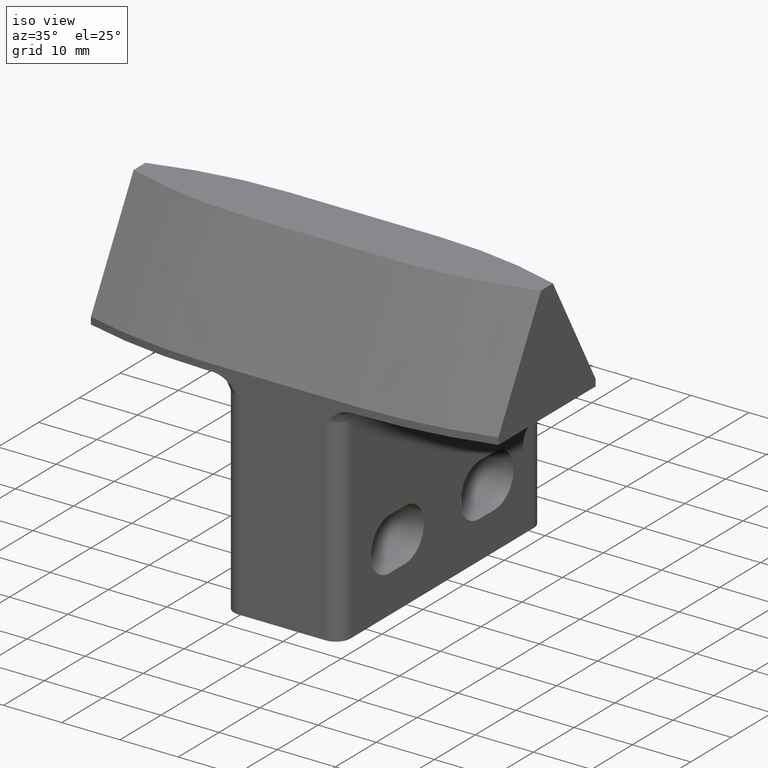
[diagram: clean part render]
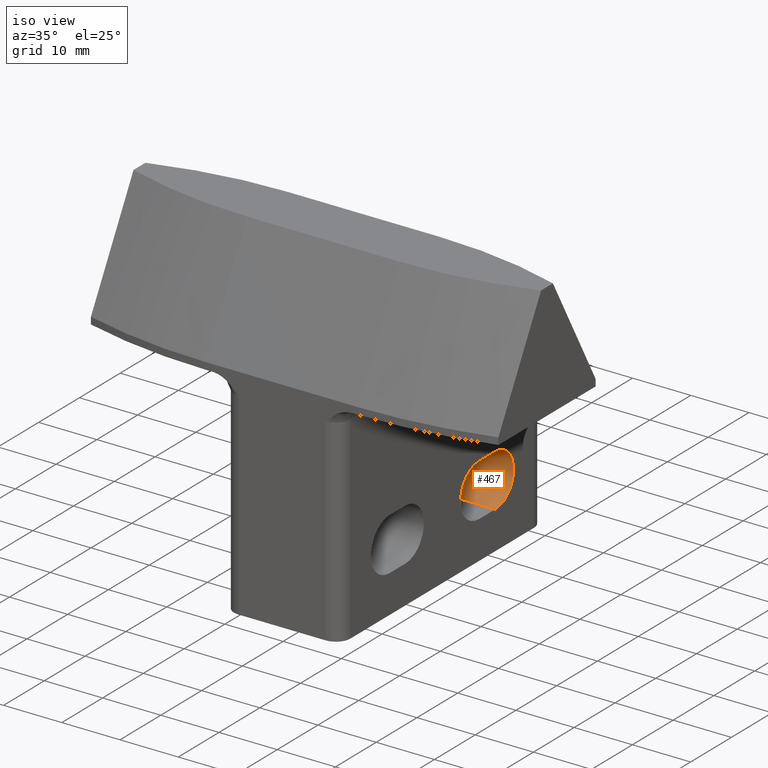
[diagram: same view with one face highlighted and labeled with its STEP entity id]
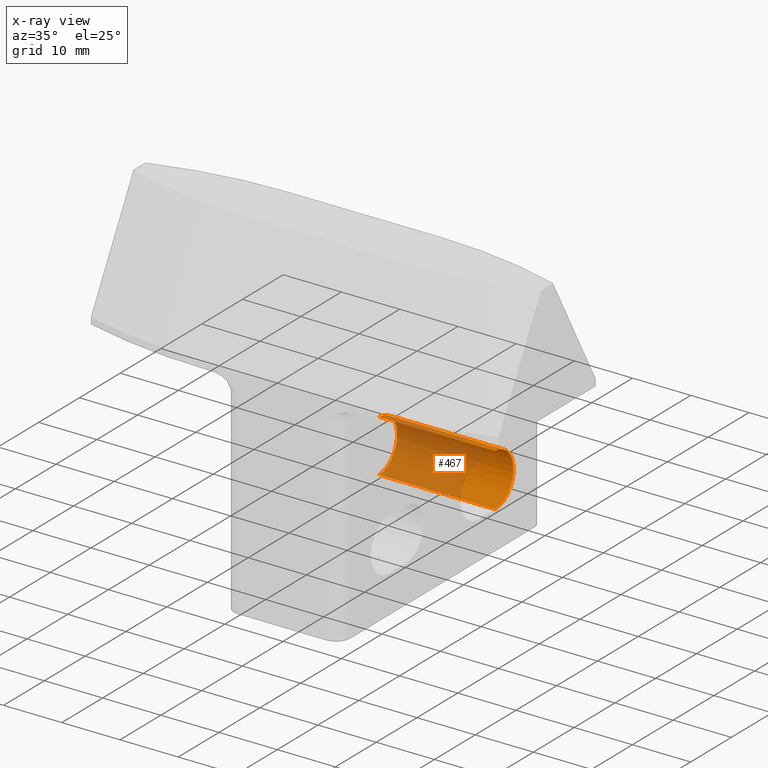
[diagram: x-ray of the same camera — body ghosted, the highlighted face saturated]
A machine part, iso view. The second image highlights one B-rep face of the part: STEP entity #467.
The next image is the same camera in x-ray: the body ghosted, the highlighted face saturated — about 67% of this face is hidden behind the body in this view.
In plain terms, the highlighted cylindrical surface (edge-blend (fillet) strip) has radius 4.5 mm, axis along (-1, -0, 0).
Its self-contained STEP definition (entity closure, byte-faithful):
#9 = CARTESIAN_POINT ( 'NONE',  ( 259.1349525314609500, -191.0043693264339900, 44.60903880631752100 ) ) ;
#78 = VECTOR ( 'NONE', #761, 1000.000000000000000 ) ;
#197 = CARTESIAN_POINT ( 'NONE',  ( 259.1349525314609500, -191.0043693264339900, 49.10903880631751400 ) ) ;
#201 = VECTOR ( 'NONE', #999, 1000.000000000000000 ) ;
#202 = DIRECTION ( 'NONE',  ( 0.0000000000000000000, 0.0000000000000000000, 1.000000000000000000 ) ) ;
#313 = CARTESIAN_POINT ( 'NONE',  ( 279.1349525314591900, -191.0043693264339900, 49.10903880631750700 ) ) ;
#326 = CARTESIAN_POINT ( 'NONE',  ( 279.1349525314591900, -191.0043693264339900, 53.60903880631750700 ) ) ;
#332 = ORIENTED_EDGE ( 'NONE', *, *, #566, .F. ) ;
#351 = ORIENTED_EDGE ( 'NONE', *, *, #939, .T. ) ;
#396 = CYLINDRICAL_SURFACE ( 'NONE', #1342, 4.499999999999990200 ) ;
#467 = ADVANCED_FACE ( 'NONE', ( #935 ), #396, .F. ) ;
#473 = AXIS2_PLACEMENT_3D ( 'NONE', #313, #1400, #202 ) ;
#496 = VERTEX_POINT ( 'NONE', #732 ) ;
#515 = ORIENTED_EDGE ( 'NONE', *, *, #926, .F. ) ;
#551 = EDGE_CURVE ( 'NONE', #1123, #929, #1364, .T. ) ;
#566 = EDGE_CURVE ( 'NONE', #1123, #496, #1102, .T. ) ;
#580 = CARTESIAN_POINT ( 'NONE',  ( 259.1349525314609500, -191.0043693264339900, 44.60903880631752100 ) ) ;
#693 = CARTESIAN_POINT ( 'NONE',  ( 259.1349525314609500, -191.0043693264339900, 53.60903880631751400 ) ) ;
#732 = CARTESIAN_POINT ( 'NONE',  ( 279.1349525314569200, -191.0043693264339900, 44.60903880631751400 ) ) ;
#746 = LINE ( 'NONE', #580, #201 ) ;
#756 = CARTESIAN_POINT ( 'NONE',  ( 259.1349525314609500, -191.0043693264339900, 53.60903880631751400 ) ) ;
#761 = DIRECTION ( 'NONE',  ( -1.000000000000000000, -0.0000000000000000000, 2.449212707644750100E-016 ) ) ;
#843 = VERTEX_POINT ( 'NONE', #9 ) ;
#857 = CIRCLE ( 'NONE', #1233, 4.499999999999990200 ) ;
#899 = DIRECTION ( 'NONE',  ( 0.0000000000000000000, 0.0000000000000000000, 1.000000000000000000 ) ) ;
#908 = DIRECTION ( 'NONE',  ( 1.000000000000000000, 0.0000000000000000000, -2.449212707644750100E-016 ) ) ;
#926 = EDGE_CURVE ( 'NONE', #843, #929, #857, .T. ) ;
#929 = VERTEX_POINT ( 'NONE', #693 ) ;
#935 = FACE_OUTER_BOUND ( 'NONE', #1159, .T. ) ;
#939 = EDGE_CURVE ( 'NONE', #843, #496, #746, .T. ) ;
#999 = DIRECTION ( 'NONE',  ( 1.000000000000000000, -0.0000000000000000000, -2.449212707644750100E-016 ) ) ;
#1102 = CIRCLE ( 'NONE', #473, 4.499999999999990200 ) ;
#1123 = VERTEX_POINT ( 'NONE', #326 ) ;
#1159 = EDGE_LOOP ( 'NONE', ( #1335, #515, #351, #332 ) ) ;
#1233 = AXIS2_PLACEMENT_3D ( 'NONE', #1244, #908, #899 ) ;
#1244 = CARTESIAN_POINT ( 'NONE',  ( 259.1349525314609500, -191.0043693264339900, 49.10903880631751400 ) ) ;
#1286 = DIRECTION ( 'NONE',  ( 0.0000000000000000000, 0.0000000000000000000, 1.000000000000000000 ) ) ;
#1335 = ORIENTED_EDGE ( 'NONE', *, *, #551, .T. ) ;
#1342 = AXIS2_PLACEMENT_3D ( 'NONE', #197, #1376, #1286 ) ;
#1364 = LINE ( 'NONE', #756, #78 ) ;
#1376 = DIRECTION ( 'NONE',  ( -1.000000000000000000, -0.0000000000000000000, 2.449212707644750100E-016 ) ) ;
#1400 = DIRECTION ( 'NONE',  ( -1.000000000000000000, -0.0000000000000000000, 2.449212707644750100E-016 ) ) ;